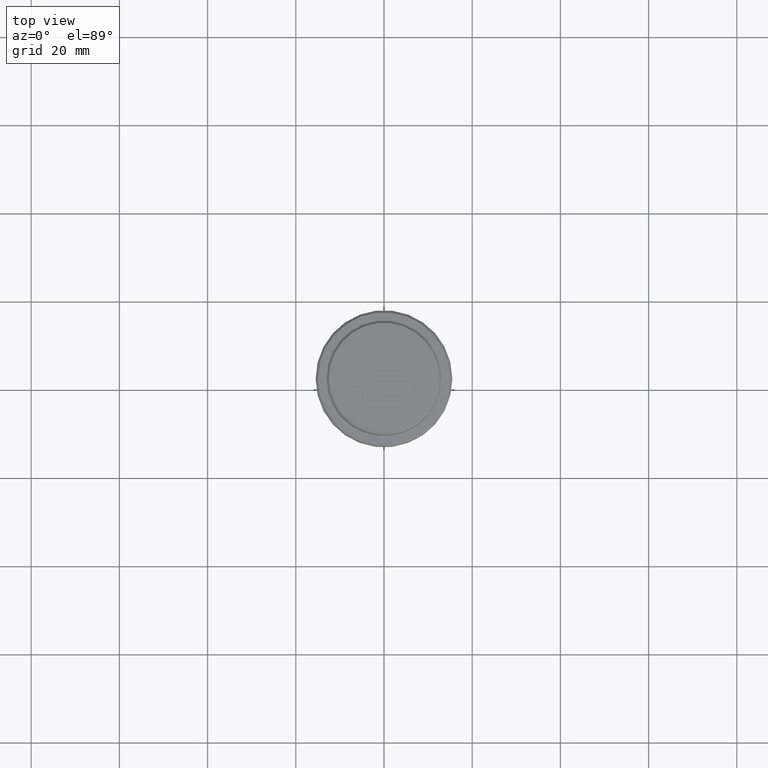
[diagram: clean part render]
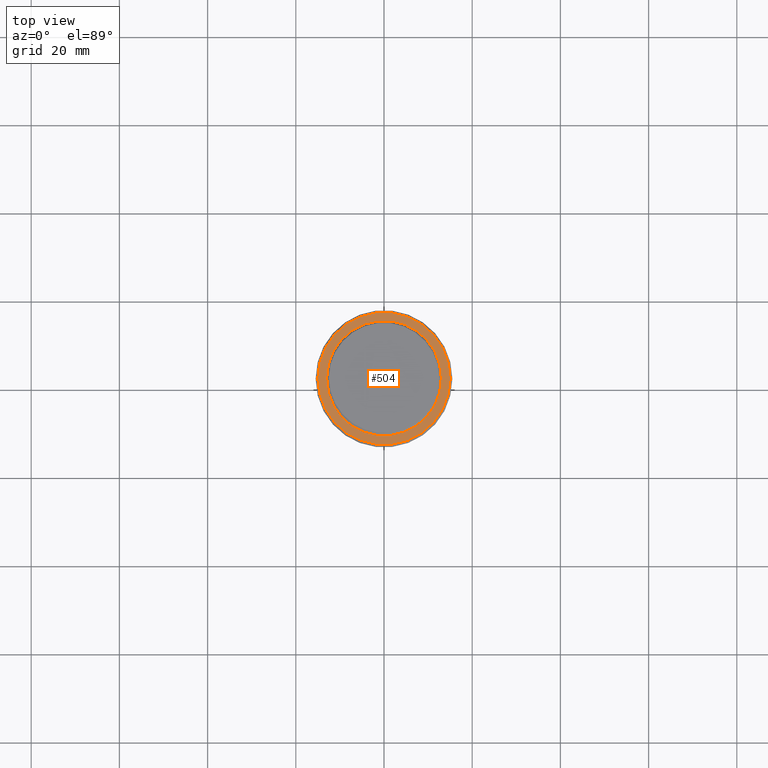
[diagram: same view with one face highlighted and labeled with its STEP entity id]
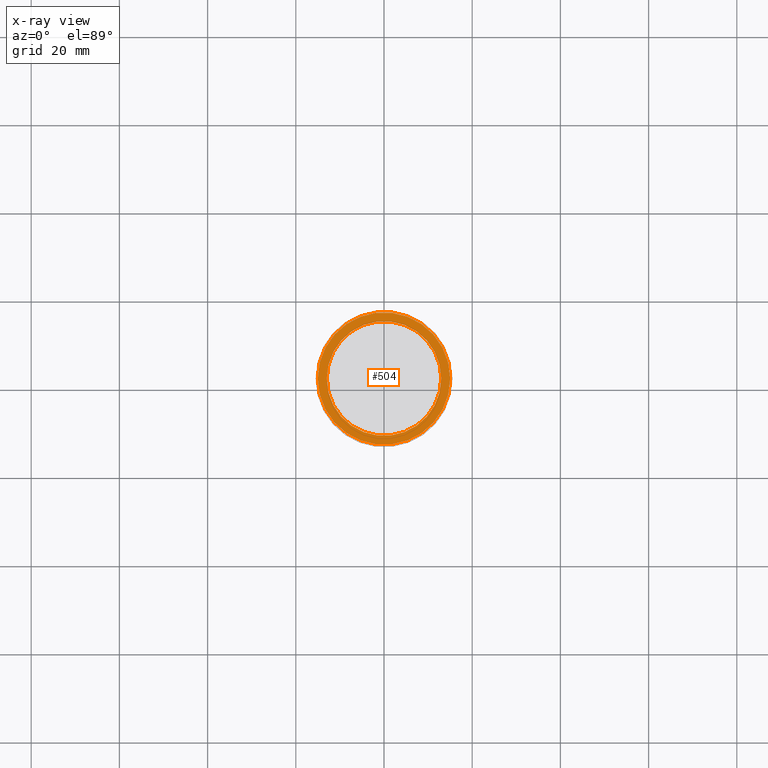
[diagram: x-ray of the same camera — body ghosted, the highlighted face saturated]
A machine part, top view. The second image highlights one B-rep face of the part: STEP entity #504.
The next image is the same camera in x-ray: the body ghosted, the highlighted face saturated — about 0% of this face is hidden behind the body in this view.
In plain terms, the highlighted planar face has unit normal (0, -0, 1).
Its self-contained STEP definition (entity closure, byte-faithful):
#3 = EDGE_LOOP ( 'NONE', ( #989, #769 ) ) ;
#19 = DIRECTION ( 'NONE',  ( 1.000000000000000000, 0.000000000000000000, 0.000000000000000000 ) ) ;
#78 = ORIENTED_EDGE ( 'NONE', *, *, #159, .T. ) ;
#85 = AXIS2_PLACEMENT_3D ( 'NONE', #709, #1041, #813 ) ;
#123 = DIRECTION ( 'NONE',  ( 1.000000000000000000, 0.000000000000000000, 0.000000000000000000 ) ) ;
#142 = CARTESIAN_POINT ( 'NONE',  ( 0.000000000000000000, 0.000000000000000000, -9.000000000000000000 ) ) ;
#148 = AXIS2_PLACEMENT_3D ( 'NONE', #142, #1228, #123 ) ;
#159 = EDGE_CURVE ( 'NONE', #886, #1297, #798, .T. ) ;
#269 = AXIS2_PLACEMENT_3D ( 'NONE', #752, #542, #1092 ) ;
#297 = EDGE_CURVE ( 'NONE', #1089, #738, #588, .T. ) ;
#368 = CARTESIAN_POINT ( 'NONE',  ( 0.000000000000000000, 0.000000000000000000, -9.000000000000000000 ) ) ;
#504 = ADVANCED_FACE ( 'NONE', ( #516, #732 ), #909, .T. ) ;
#516 = FACE_OUTER_BOUND ( 'NONE', #624, .T. ) ;
#542 = DIRECTION ( 'NONE',  ( -0.000000000000000000, -0.000000000000000000, 1.000000000000000000 ) ) ;
#549 = ORIENTED_EDGE ( 'NONE', *, *, #715, .T. ) ;
#588 = CIRCLE ( 'NONE', #823, 12.99999999999999467 ) ;
#624 = EDGE_LOOP ( 'NONE', ( #549, #78 ) ) ;
#662 = DIRECTION ( 'NONE',  ( 0.000000000000000000, 0.000000000000000000, -1.000000000000000000 ) ) ;
#709 = CARTESIAN_POINT ( 'NONE',  ( 0.000000000000000000, 12.49999999999999289, -9.000000000000000000 ) ) ;
#715 = EDGE_CURVE ( 'NONE', #1297, #886, #753, .T. ) ;
#732 = FACE_BOUND ( 'NONE', #3, .T. ) ;
#738 = VERTEX_POINT ( 'NONE', #1337 ) ;
#752 = CARTESIAN_POINT ( 'NONE',  ( 0.000000000000000000, 0.000000000000000000, -9.000000000000000000 ) ) ;
#753 = CIRCLE ( 'NONE', #148, 14.99999999999998579 ) ;
#769 = ORIENTED_EDGE ( 'NONE', *, *, #297, .T. ) ;
#773 = AXIS2_PLACEMENT_3D ( 'NONE', #368, #829, #1030 ) ;
#797 = CIRCLE ( 'NONE', #773, 12.99999999999999467 ) ;
#798 = CIRCLE ( 'NONE', #269, 14.99999999999998579 ) ;
#813 = DIRECTION ( 'NONE',  ( 1.000000000000000000, 0.000000000000000000, 0.000000000000000000 ) ) ;
#823 = AXIS2_PLACEMENT_3D ( 'NONE', #1116, #662, #19 ) ;
#829 = DIRECTION ( 'NONE',  ( 0.000000000000000000, 0.000000000000000000, -1.000000000000000000 ) ) ;
#886 = VERTEX_POINT ( 'NONE', #1144 ) ;
#909 = PLANE ( 'NONE',  #85 ) ;
#910 = EDGE_CURVE ( 'NONE', #738, #1089, #797, .T. ) ;
#989 = ORIENTED_EDGE ( 'NONE', *, *, #910, .T. ) ;
#1019 = CARTESIAN_POINT ( 'NONE',  ( -14.99999999999998579, 0.000000000000000000, -9.000000000000000000 ) ) ;
#1030 = DIRECTION ( 'NONE',  ( 1.000000000000000000, 0.000000000000000000, 0.000000000000000000 ) ) ;
#1041 = DIRECTION ( 'NONE',  ( 0.000000000000000000, -0.000000000000000000, 1.000000000000000000 ) ) ;
#1089 = VERTEX_POINT ( 'NONE', #1282 ) ;
#1092 = DIRECTION ( 'NONE',  ( 1.000000000000000000, 0.000000000000000000, 0.000000000000000000 ) ) ;
#1116 = CARTESIAN_POINT ( 'NONE',  ( 0.000000000000000000, 0.000000000000000000, -9.000000000000000000 ) ) ;
#1144 = CARTESIAN_POINT ( 'NONE',  ( 14.99999999999998579, 1.867586368699712587E-15, -9.000000000000000000 ) ) ;
#1228 = DIRECTION ( 'NONE',  ( -0.000000000000000000, -0.000000000000000000, 1.000000000000000000 ) ) ;
#1282 = CARTESIAN_POINT ( 'NONE',  ( -12.99999999999999467, 1.592040838891558504E-15, -9.000000000000000000 ) ) ;
#1297 = VERTEX_POINT ( 'NONE', #1019 ) ;
#1337 = CARTESIAN_POINT ( 'NONE',  ( 12.99999999999999467, 0.000000000000000000, -9.000000000000000000 ) ) ;